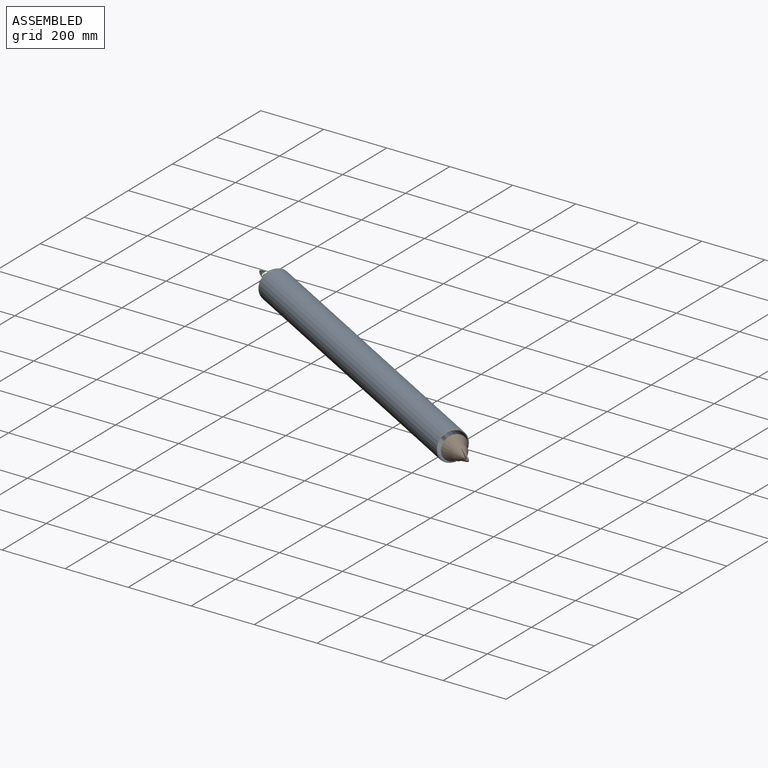
[diagram: assembled view]
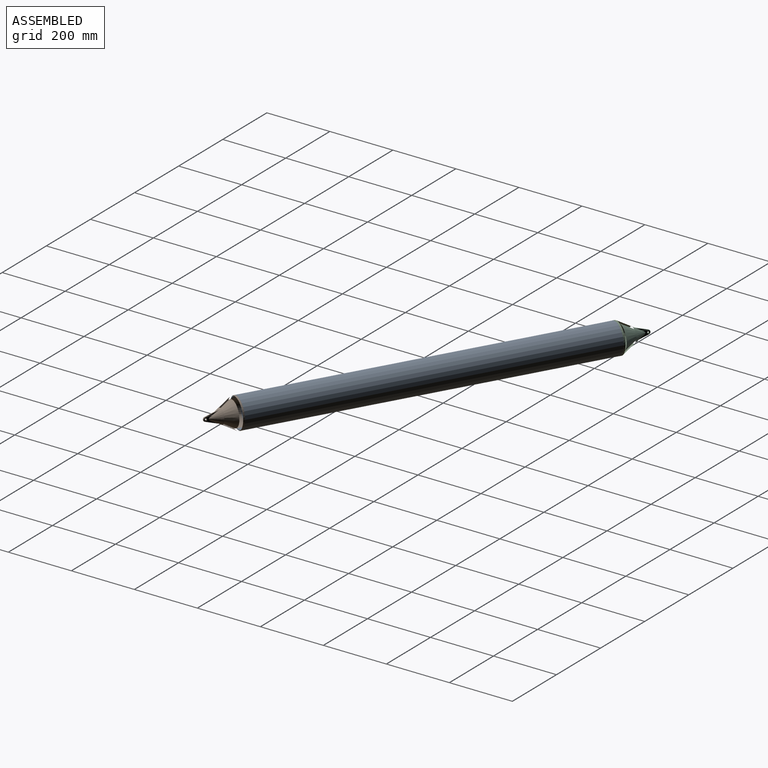
[diagram: assembled view, second angle]
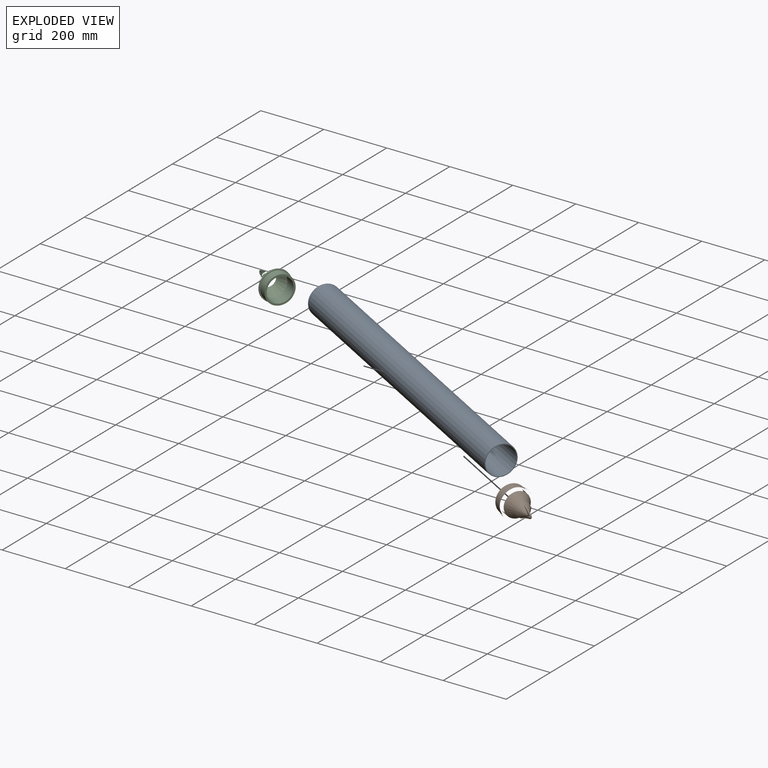
[diagram: exploded view]
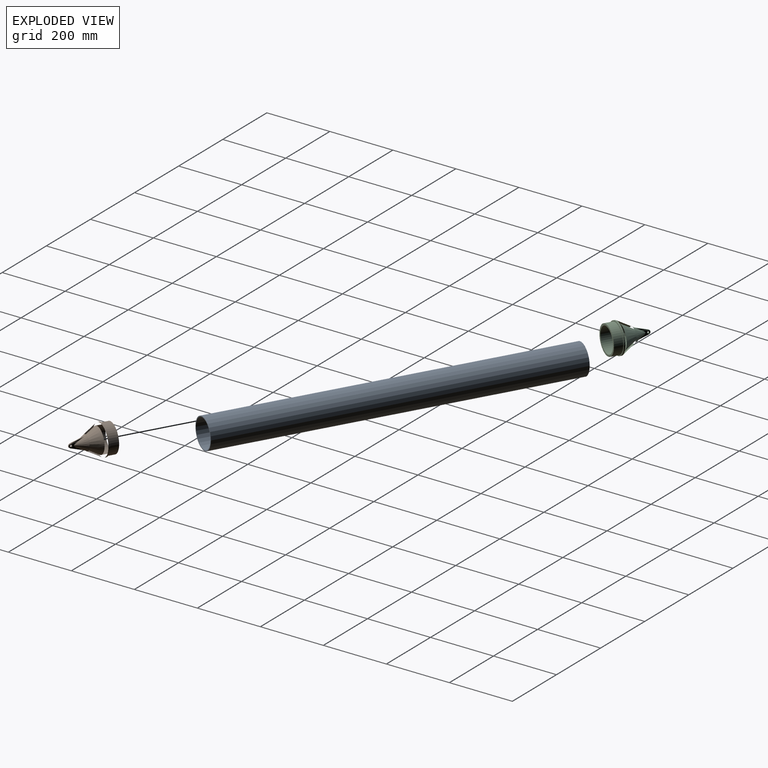
[diagram: exploded view, second angle]
ASSEMBLY  parts=3 mates=2
PART A: 4 faces, bbox 988.9x625.8x95 mm
  f0: cylinder r=45mm len=986.37mm, axis (0.87,-0.5,0), area 307342mm2, adj f2,f3
  f1: cylinder r=47.5mm len=988.87mm, axis (0.87,-0.5,0), area 324416.6mm2, adj f2,f3
  f2: plane 95x82.27mm, normal (-0.87,0.5,0), area 726.5mm2, adj f0,f1
  f3: plane 95x82.27mm, normal (0.87,-0.5,0), area 726.5mm2, adj f0,f1
PART B: 90 faces, bbox 131.8x103.2x95 mm
  f0: cylinder r=47.5mm len=95mm, axis (-0.87,0.5,0), area 1457.4mm2, adj f82,f84
  f1: cylinder r=3.01mm len=6.43mm, axis (0.5,0.87,0), area 46mm2, adj f2,f4
  f2: plane 6.95x6.02mm, normal (-0.5,-0.87,0), area 9.4mm2, adj f1,f9
  f3: cylinder r=4.63mm len=9.27mm, axis (-0.5,-0.87,0), area 10.1mm2, adj f4,f8
  f4: plane 9.27x8.03mm, normal (0.5,0.87,0), area 39mm2, adj f1,f3
  f5: torus R=4.91mm, axis (0.5,0.87,0), area 10.7mm2, adj f10,f65
  f6: torus R=4.91mm, axis (-0.5,-0.87,0), area 10.7mm2, adj f8,f58
  f7: cone r=22.85mm half-angle=16deg, axis (-0.87,0.5,0), area 69.2mm2, adj f57,f83
  f8: plane 9.81x8.5mm, normal (0.5,0.87,0), area 8.2mm2, adj f3,f6
  f9: cylinder r=3.48mm len=6.95mm, axis (-0.5,-0.87,0), area 5.1mm2, adj f2,f80
  f10: plane 9.81x8.5mm, normal (-0.5,-0.87,0), area 8.2mm2, adj f5,f79
  f11: cylinder r=1.16mm len=17.41mm, axis (0.85,-0.49,-0.17), area 18.3mm2, adj f12,f13,f67,f76
  f12: bspline ~1.56x1.05mm, area 1.2mm2, adj f11,f14,f56,f67
  f13: sphere r=1.16mm, area 0.3mm2, adj f11,f15,f16
  f14: bspline ~2.79x1.64mm, area 0.6mm2, adj f12,f17,f56,f75
  f15: bspline ~24.65x16.98mm, area 22.4mm2, adj f13,f18,f57,f76
  f16: bspline ~3.4x2.77mm, area 1.7mm2, adj f13,f48,f57,f67
  f17: torus R=6.89mm, axis (0.5,0.87,0), area 10.3mm2, adj f14,f19,f55,f75
  f18: bspline ~5.74x4.31mm, area 7.1mm2, adj f15,f20,f56,f57
  f19: bspline ~3.77x2.3mm, area 0.6mm2, adj f17,f21,f54,f75
  f20: bspline ~2.76x2.08mm, area 0.3mm2, adj f18,f22,f57,f68
  f21: bspline ~1.56x1.05mm, area 1.2mm2, adj f19,f23,f54,f64
  f22: bspline ~3.05x1.53mm, area 0.3mm2, adj f20,f24,f57,f69
  f23: cylinder r=1.16mm len=17.41mm, axis (-0.85,0.49,-0.17), area 18.3mm2, adj f21,f25,f63,f64
  f24: bspline ~7.22x4.48mm, area 7.1mm2, adj f22,f26,f53,f57
  f25: sphere r=1.16mm, area 0.3mm2, adj f23,f27,f28
  f26: bspline ~24.08x16.98mm, area 22.4mm2, adj f24,f29,f57,f77
  f27: bspline ~3.4x2.77mm, area 1.7mm2, adj f25,f50,f57,f64
  f28: bspline ~24.65x16.98mm, area 22.4mm2, adj f25,f30,f57,f63
  f29: sphere r=1.16mm, area 0.3mm2, adj f26,f31,f32
  f30: bspline ~6.93x4.88mm, area 7.1mm2, adj f28,f33,f54,f57
  f31: cylinder r=1.16mm len=17.19mm, axis (-0.85,0.49,0.17), area 18.3mm2, adj f29,f34,f70,f77
  f32: bspline ~3.77x2.77mm, area 1.7mm2, adj f29,f45,f57,f70
  f33: bspline ~2.76x2.08mm, area 0.3mm2, adj f30,f35,f57,f62
  f34: bspline ~1.37x1.1mm, area 1.2mm2, adj f31,f36,f53,f70
  f35: bspline ~3.05x1.53mm, area 0.3mm2, adj f33,f37,f57,f61
  f36: bspline ~3.67x2.36mm, area 0.6mm2, adj f34,f38,f53,f72
  f37: bspline ~7.23x4.48mm, area 7.1mm2, adj f35,f39,f51,f57
  f38: torus R=6.89mm, axis (-0.5,-0.87,0), area 10.3mm2, adj f36,f40,f52,f72
  f39: bspline ~24.08x16.98mm, area 22.4mm2, adj f37,f41,f57,f60
  f40: bspline ~2.59x1.8mm, area 0.6mm2, adj f38,f42,f51,f72
  f41: sphere r=1.16mm, area 0.3mm2, adj f39,f43,f44
  f42: bspline ~1.37x1.1mm, area 1.2mm2, adj f40,f44,f51,f59
  f43: bspline ~3.77x2.77mm, area 1.7mm2, adj f41,f47,f57,f59
  f44: cylinder r=1.16mm len=17.19mm, axis (0.85,-0.49,0.17), area 18.3mm2, adj f41,f42,f59,f60
  f45: bspline ~9.97x8.7mm, area 23.6mm2, adj f32,f46,f57,f58,f70
  f46: torus R=5.18mm, axis (-0.5,-0.87,0), area 13.9mm2, adj f45,f47,f58,f71
  f47: bspline ~10.42x9.1mm, area 23.6mm2, adj f43,f46,f57,f58,f59
  f48: bspline ~11.95x9.46mm, area 23.6mm2, adj f16,f49,f57,f65,f67
  f49: torus R=5.18mm, axis (-0.5,-0.87,0), area 13.9mm2, adj f48,f50,f65,f66
  f50: bspline ~11.95x9.46mm, area 23.6mm2, adj f27,f49,f57,f64,f65
  f51: cylinder r=0.35mm len=34.99mm, axis (0.82,-0.47,0.32), area 21.3mm2, adj f37,f40,f42,f52,f60,f61
  f52: torus R=6.55mm, axis (-0.5,-0.87,0), area 7.8mm2, adj f38,f51,f53,f73
  f53: cylinder r=0.35mm len=34.99mm, axis (-0.82,0.47,0.32), area 21.3mm2, adj f24,f34,f36,f52,f69,f77
  f54: cylinder r=0.35mm len=35.15mm, axis (-0.82,0.47,-0.32), area 21.3mm2, adj f19,f21,f30,f55,f62,f63
  f55: torus R=6.55mm, axis (-0.5,-0.87,0), area 7.8mm2, adj f17,f54,f56,f74
  f56: cylinder r=0.35mm len=35.15mm, axis (0.82,-0.47,-0.32), area 21.3mm2, adj f12,f14,f18,f55,f68,f76
  f57: cone r=4.01mm half-angle=30deg, axis (-0.87,0.5,0), area 2820.3mm2, adj f7,f15,f16,f18,f20,f22,f24,f26
  f58: plane 18.85x17.4mm, normal (0.5,0.87,0), area 106.3mm2, adj f6,f45,f46,f47,f59,f70,f72
  f59: plane 18.54x10.78mm, normal (0.46,0.55,-0.7), area 8.4mm2, adj f42,f43,f44,f47,f58,f72
  f60: plane 27.47x15.86mm, normal (0.5,0.87,0), area 48.7mm2, adj f39,f44,f51
  f61: plane 35.6x21.37mm, normal (0.29,-0.13,-0.95), area 59.5mm2, adj f35,f51,f62,f73
  f62: plane 35.61x21.36mm, normal (0.26,-0.19,-0.95), area 59.5mm2, adj f33,f54,f61,f74
  f63: plane 27.47x15.86mm, normal (-0.5,-0.87,0), area 48.7mm2, adj f23,f28,f54
  f64: plane 18.46x10.85mm, normal (-0.25,-0.67,-0.7), area 8.4mm2, adj f21,f23,f27,f50,f65,f75
  f65: plane 18.85x17.4mm, normal (-0.5,-0.87,0), area 106.3mm2, adj f5,f48,f49,f50,f64,f67,f75
  f66: sphere r=4.63mm, area 0mm2, adj f49,f57
  f67: plane 18.46x10.85mm, normal (-0.25,-0.67,0.7), area 8.4mm2, adj f11,f12,f16,f48,f65,f75
  f68: plane 35.61x21.36mm, normal (0.26,-0.19,0.95), area 59.5mm2, adj f20,f56,f69,f74
  f69: plane 35.6x21.37mm, normal (0.29,-0.13,0.95), area 59.5mm2, adj f22,f53,f68,f73
  f70: plane 18.54x10.78mm, normal (0.46,0.55,0.7), area 8.4mm2, adj f31,f32,f34,f45,f58,f72
  f71: sphere r=4.63mm, area 5.4mm2, adj f46,f57
  f72: cone r=5.79mm half-angle=45deg, axis (-0.5,-0.87,0), area 6.5mm2, adj f36,f38,f40,f58,f59,f70
  f73: cone r=6.95mm half-angle=2deg, axis (-0.5,-0.87,0), area 24.3mm2, adj f52,f61,f69,f74
  f74: cone r=6.95mm half-angle=2deg, axis (0.5,0.87,0), area 24.3mm2, adj f55,f62,f68,f73
  f75: cone r=6.37mm half-angle=45deg, axis (0.5,0.87,0), area 6.5mm2, adj f14,f17,f19,f64,f65,f67
  f76: plane 27.47x15.86mm, normal (-0.5,-0.87,0), area 48.7mm2, adj f11,f15,f56
  f77: plane 27.47x15.86mm, normal (0.5,0.87,0), area 48.7mm2, adj f26,f31,f53
  f78: plane 9.27x8.03mm, normal (-0.5,-0.87,0), area 39mm2, adj f79,f81
  f79: cylinder r=4.63mm len=9.27mm, axis (0.5,0.87,0), area 10.1mm2, adj f10,f78
  f80: plane 6.95x6.02mm, normal (0.5,0.87,0), area 9.4mm2, adj f9,f81
  f81: cylinder r=3.01mm len=6.43mm, axis (-0.5,-0.87,0), area 46mm2, adj f78,f80
  f82: cone r=47.44mm half-angle=15deg, axis (-0.87,0.5,0), area 71.5mm2, adj f0,f83
  f83: cone r=47.44mm half-angle=30deg, axis (-0.87,0.5,0), area 10784.1mm2, adj f7,f82
  f84: plane 95x82.27mm, normal (-0.87,0.5,0), area 839.1mm2, adj f0,f85
  f85: cylinder r=44.6mm len=90.73mm, axis (-0.87,0.5,0), area 7557.1mm2, adj f84,f89
  f86: plane 15.77x13.66mm, normal (-0.87,0.5,0), area 195.4mm2, adj f87
  f87: cone r=38.93mm half-angle=30deg, axis (-0.87,0.5,0), area 9130.3mm2, adj f86,f88
  f88: cylinder r=38.93mm len=86.92mm, axis (-0.87,0.5,0), area 9536mm2, adj f87,f89
  f89: plane 89.2x77.25mm, normal (-0.87,0.5,0), area 1488.6mm2, adj f85,f88
PART C: same geometry as B
PLACE A t=(-803.95,-213,444.99)mm
PLACE B t=(-803.95,-213,444.99)mm
PLACE C rot(axis=(0.5,0.87,0),180deg) t=(-807.41,-211,-203.79)mm
MATE fastened C.f7 <-> A.f0  axis (0.87,-0.5,0) through (-1067.24,421.97,120.6)mm
MATE fastened B.f7 <-> A.f0  axis (-0.87,0.5,0) through (-125.87,-121.53,120.6)mm
